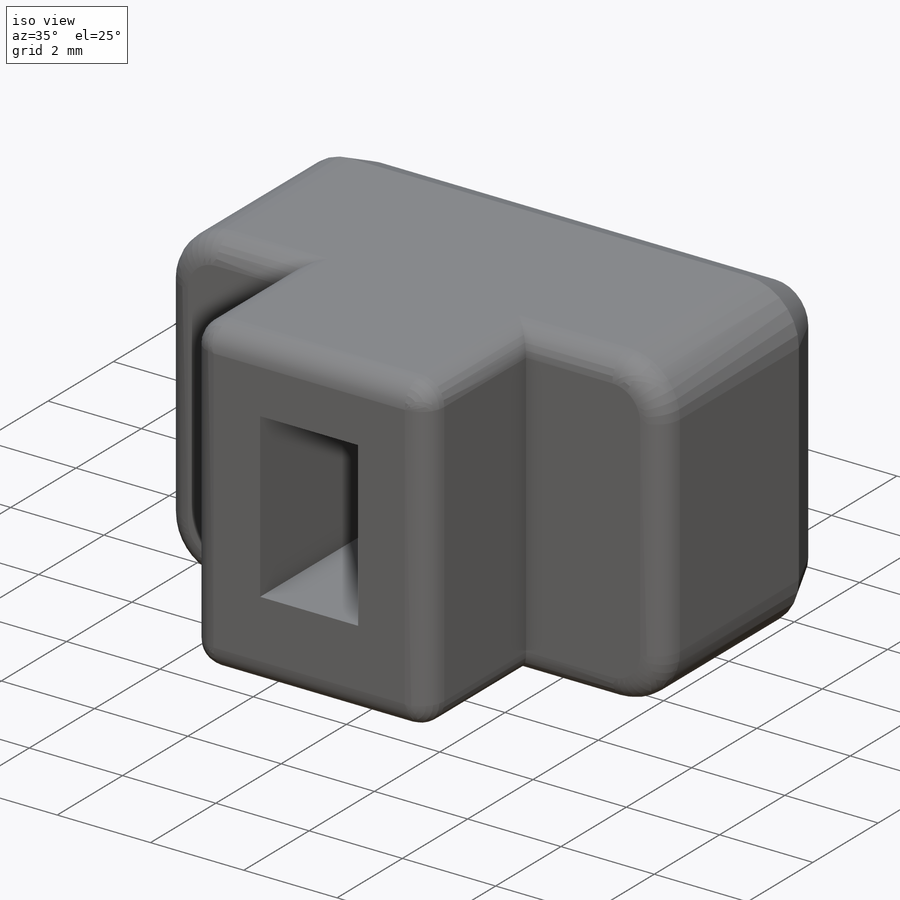
[diagram: iso view]
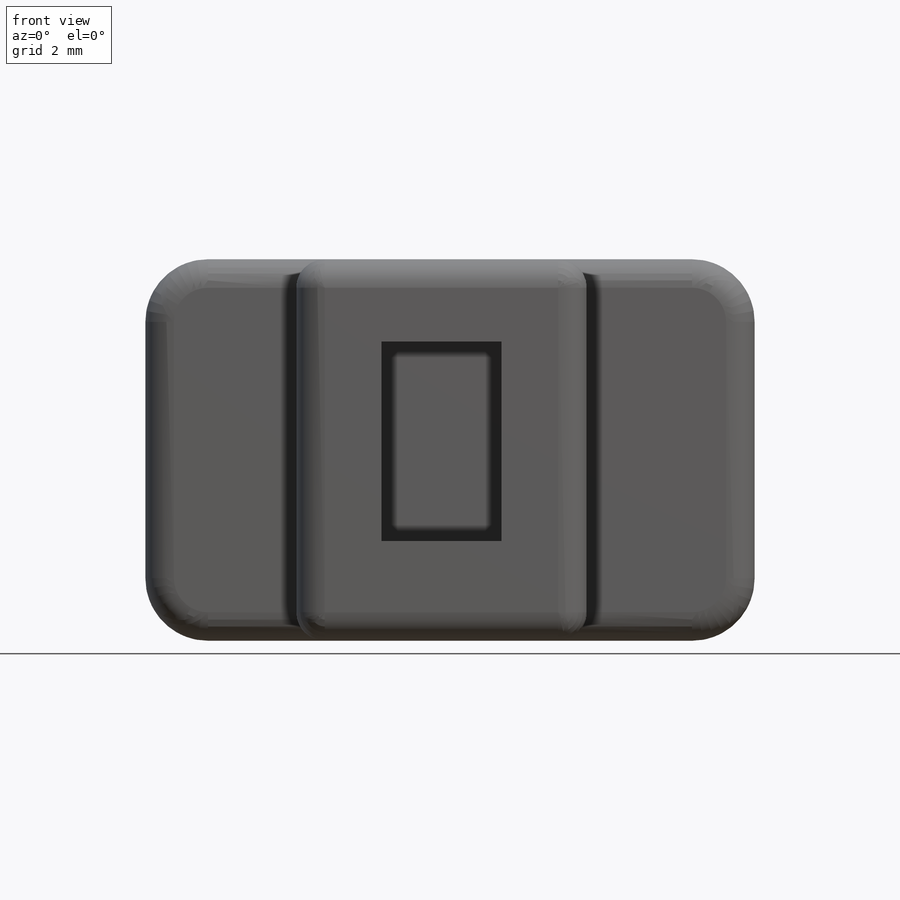
[diagram: front view]
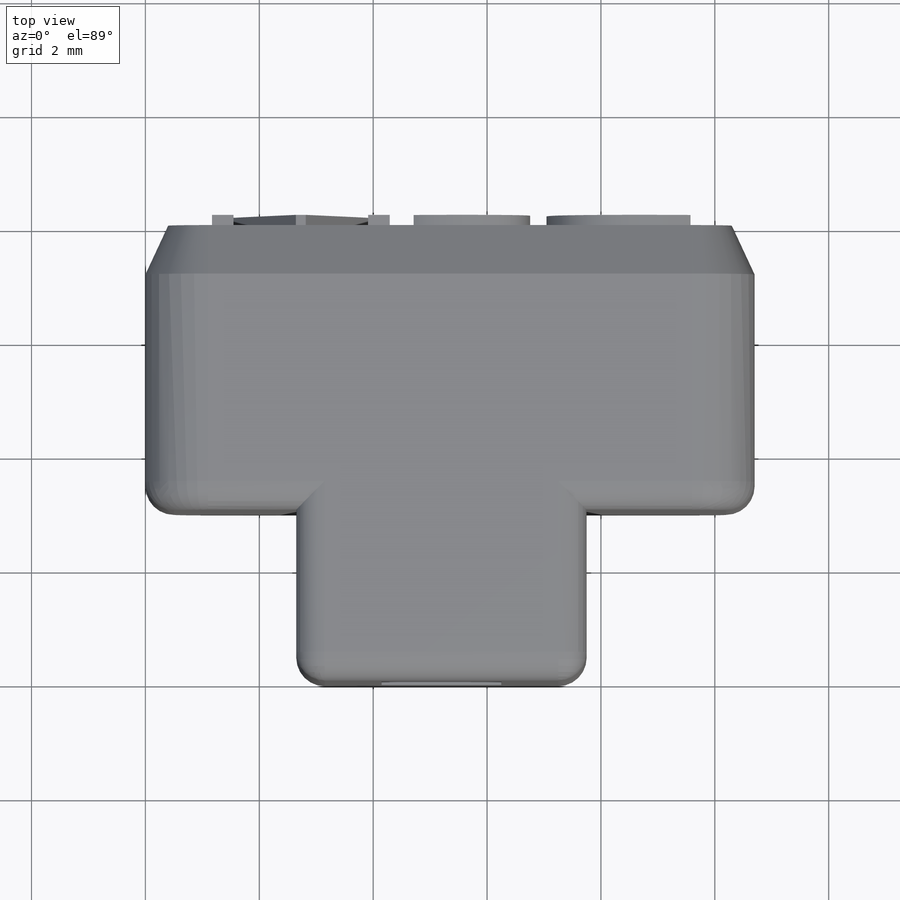
[diagram: top view]
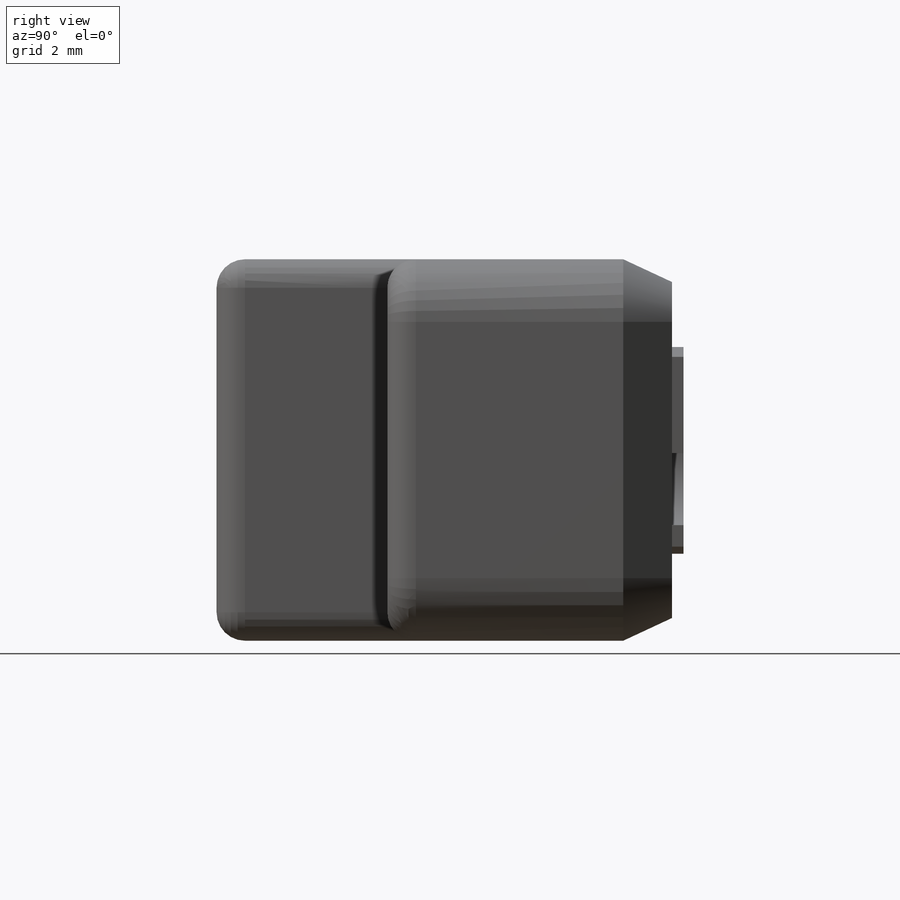
[diagram: right view]
SOLIDWORKS PART (.sldprt)
format: sldprt  version: not decoded by parser v0  size: 427,520 bytes
history: native  units: mm
features: sketch x5, plane x3, cut_extrude x3, extrude x2, material x1, fillet x1, chamfer x1 (+10 scaffold rows collapsed)
feature tree (26):
  scaffold x10  (default folders/planes/origin — collapsed)
  material  "Matériau <non spécifié>"
  plane  "Plan de face"
  plane  "Plan de dessus"
  plane  "Plan de droite"
  sketch  "Esquisse2"  dims[D3=1.1mm D1=10.7mm D2=6.7mm]
  extrude  "Boss.-Extru.1"  Depth=8mm
  sketch  "Esquisse3"  dims[D1=2.1mm D2=3.5mm D3=4.15mm D4=4.45mm D5=1.45mm D6=1.75mm]
  cut_extrude  "Enlèv. mat.-Extru.1"  Depth=3mm
  sketch  "Esquisse4"  dims[D1=1.5mm D2=1.5mm]
  cut_extrude  "Enlèv. mat.-Extru.2"  Depth=3mm
  fillet  "Congé1"  Radius=0.5mm
  chamfer  "Chanfrein1"  Distance=0.4mm Angle=65deg
  sketch  "Esquisse5"
  cut_extrude  "Enlèv. mat.-Extru.3"  Depth=0.2mm
  extrude  "Boss.-Extru.2"  [1 undecoded]
  sketch  "Esquisse5<4>"  dims[D1=0.2mm]
decode coverage: 10 of 12 modeling features carry decoded parameters
note: 1 parameter value undecoded
note: suppression state not decoded; provenance and decode notes live in map.json
